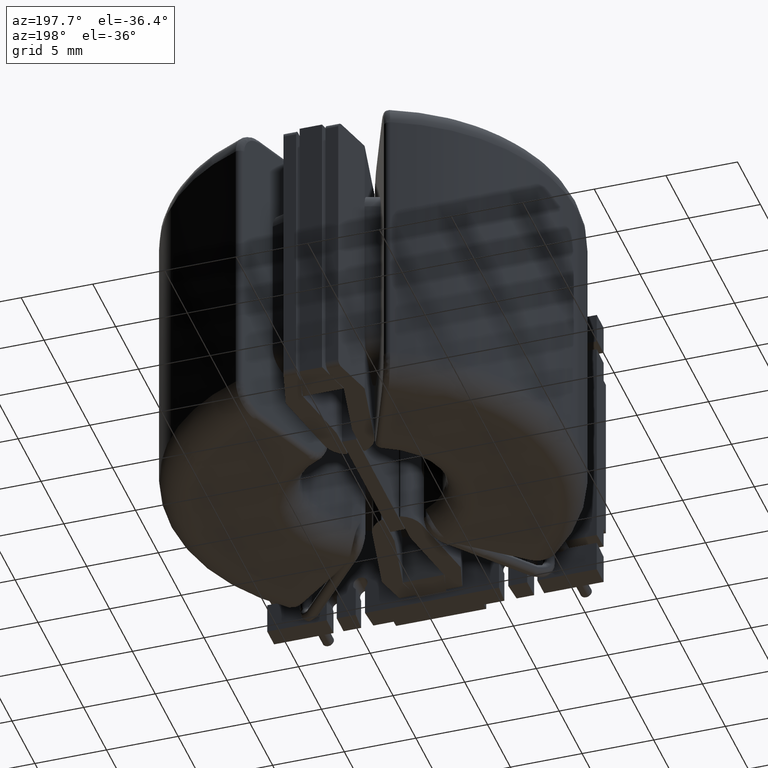
[diagram: clean part render]
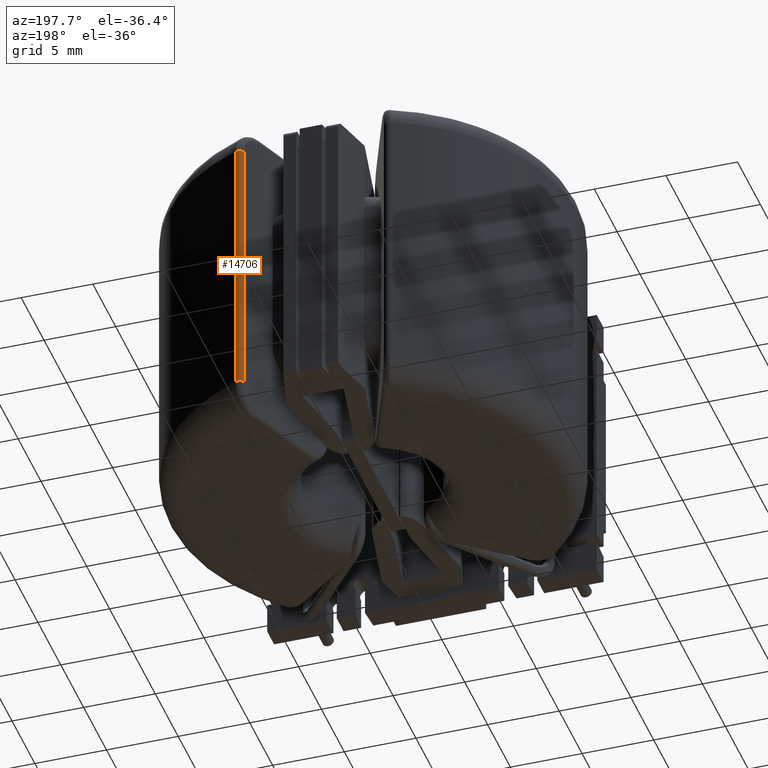
[diagram: same view with one face highlighted and labeled with its STEP entity id]
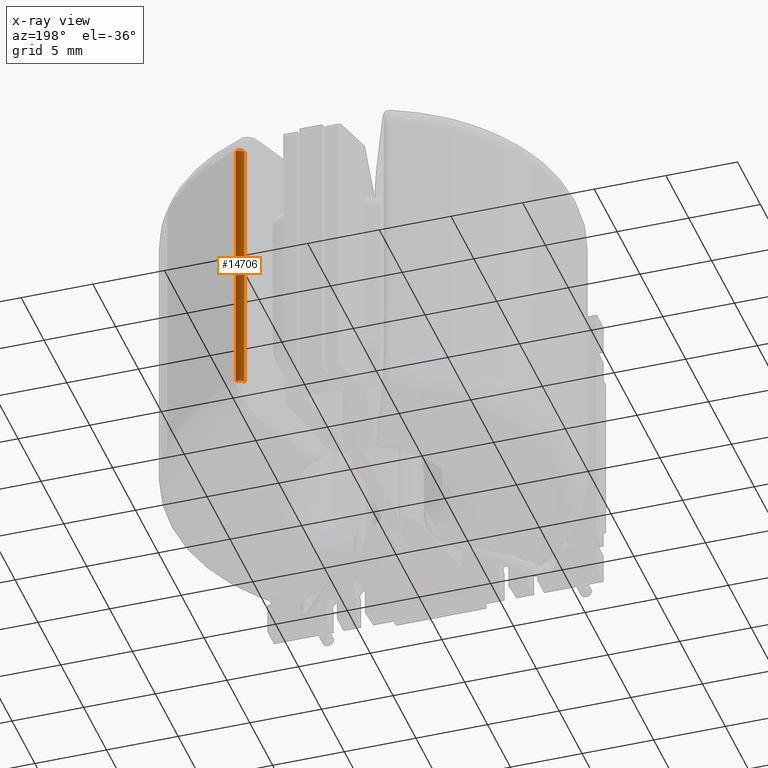
[diagram: x-ray of the same camera — body ghosted, the highlighted face saturated]
A machine part, auxiliary view. The second image highlights one B-rep face of the part: STEP entity #14706.
The next image is the same camera in x-ray: the body ghosted, the highlighted face saturated — about 0% of this face is hidden behind the body in this view.
In plain terms, the highlighted cylindrical surface (edge-blend (fillet) strip) has radius 0.4 mm, axis along (0, -0, -1).
Its self-contained STEP definition (entity closure, byte-faithful):
#38 = AXIS2_PLACEMENT_3D ( 'NONE', #19526, #6976, #21674 ) ;
#47 = CIRCLE ( 'NONE', #38, 0.4000000000000001887 ) ;
#397 = CARTESIAN_POINT ( 'NONE',  ( 4.867123660239295546, 12.96894780913004119, 9.500000000000000000 ) ) ;
#3488 = EDGE_LOOP ( 'NONE', ( #7370, #4372, #5181, #23635 ) ) ;
#4372 = ORIENTED_EDGE ( 'NONE', *, *, #8324, .T. ) ;
#4981 = CARTESIAN_POINT ( 'NONE',  ( 5.390055375587981423, 13.19127753661847358, -9.499999999999998224 ) ) ;
#5181 = ORIENTED_EDGE ( 'NONE', *, *, #23195, .T. ) ;
#5302 = CYLINDRICAL_SURFACE ( 'NONE', #26686, 0.4000000000000001887 ) ;
#5611 = VERTEX_POINT ( 'NONE', #18081 ) ;
#6483 = VERTEX_POINT ( 'NONE', #9682 ) ;
#6499 = DIRECTION ( 'NONE',  ( 0.0000000000000000000, -0.0000000000000000000, -1.000000000000000000 ) ) ;
#6976 = DIRECTION ( 'NONE',  ( -0.0000000000000000000, -0.0000000000000000000, 1.000000000000000000 ) ) ;
#7370 = ORIENTED_EDGE ( 'NONE', *, *, #11722, .F. ) ;
#7977 = LINE ( 'NONE', #24067, #19436 ) ;
#8324 = EDGE_CURVE ( 'NONE', #5611, #14905, #25964, .T. ) ;
#9682 = CARTESIAN_POINT ( 'NONE',  ( 4.867123660239294658, 12.96894780913003942, -9.499999999999998224 ) ) ;
#11383 = CARTESIAN_POINT ( 'NONE',  ( 5.238755575571474310, 12.82099606190637608, -9.499999999999998224 ) ) ;
#11722 = EDGE_CURVE ( 'NONE', #5611, #16524, #47, .T. ) ;
#11980 = DIRECTION ( 'NONE',  ( -0.0000000000000000000, -0.0000000000000000000, 1.000000000000000000 ) ) ;
#12426 = VECTOR ( 'NONE', #16744, 1000.000000000000000 ) ;
#12602 = CARTESIAN_POINT ( 'NONE',  ( 5.390055375587979647, 13.19127753661847358, 11.50000000000000000 ) ) ;
#12721 = DIRECTION ( 'NONE',  ( 1.000000000000000000, 0.0000000000000000000, 0.0000000000000000000 ) ) ;
#13471 = DIRECTION ( 'NONE',  ( -0.0000000000000000000, -0.0000000000000000000, 1.000000000000000000 ) ) ;
#14706 = ADVANCED_FACE ( 'NONE', ( #15490 ), #5302, .T. ) ;
#14905 = VERTEX_POINT ( 'NONE', #4981 ) ;
#15490 = FACE_OUTER_BOUND ( 'NONE', #3488, .T. ) ;
#15607 = DIRECTION ( 'NONE',  ( 1.000000000000000000, 0.0000000000000000000, 0.0000000000000000000 ) ) ;
#16524 = VERTEX_POINT ( 'NONE', #397 ) ;
#16632 = CIRCLE ( 'NONE', #22162, 0.4000000000000001887 ) ;
#16744 = DIRECTION ( 'NONE',  ( 0.0000000000000000000, -0.0000000000000000000, -1.000000000000000000 ) ) ;
#16775 = CARTESIAN_POINT ( 'NONE',  ( 5.238755575571476086, 12.82099606190637786, 11.50000000000000000 ) ) ;
#18081 = CARTESIAN_POINT ( 'NONE',  ( 5.390055375587979647, 13.19127753661847358, 9.500000000000000000 ) ) ;
#19436 = VECTOR ( 'NONE', #11980, 1000.000000000000000 ) ;
#19526 = CARTESIAN_POINT ( 'NONE',  ( 5.238755575571475198, 12.82099606190637431, 9.500000000000000000 ) ) ;
#20932 = EDGE_CURVE ( 'NONE', #6483, #16524, #7977, .T. ) ;
#21674 = DIRECTION ( 'NONE',  ( 1.000000000000000000, 0.0000000000000000000, 0.0000000000000000000 ) ) ;
#22162 = AXIS2_PLACEMENT_3D ( 'NONE', #11383, #13471, #15607 ) ;
#23195 = EDGE_CURVE ( 'NONE', #14905, #6483, #16632, .T. ) ;
#23635 = ORIENTED_EDGE ( 'NONE', *, *, #20932, .T. ) ;
#24067 = CARTESIAN_POINT ( 'NONE',  ( 4.867123660239295546, 12.96894780913004119, -11.50000000000000000 ) ) ;
#25964 = LINE ( 'NONE', #12602, #12426 ) ;
#26686 = AXIS2_PLACEMENT_3D ( 'NONE', #16775, #6499, #12721 ) ;